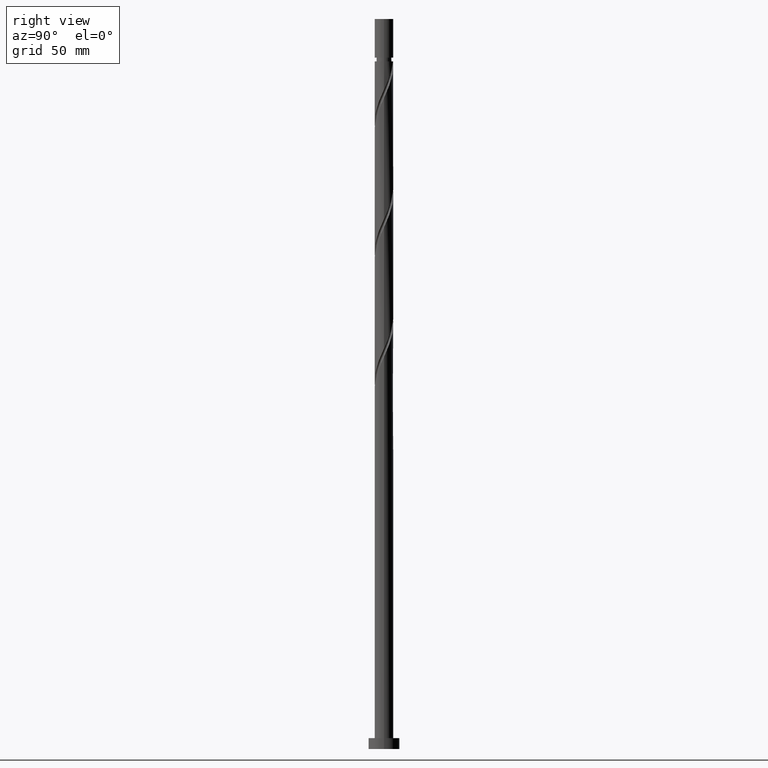
[diagram: clean part render]
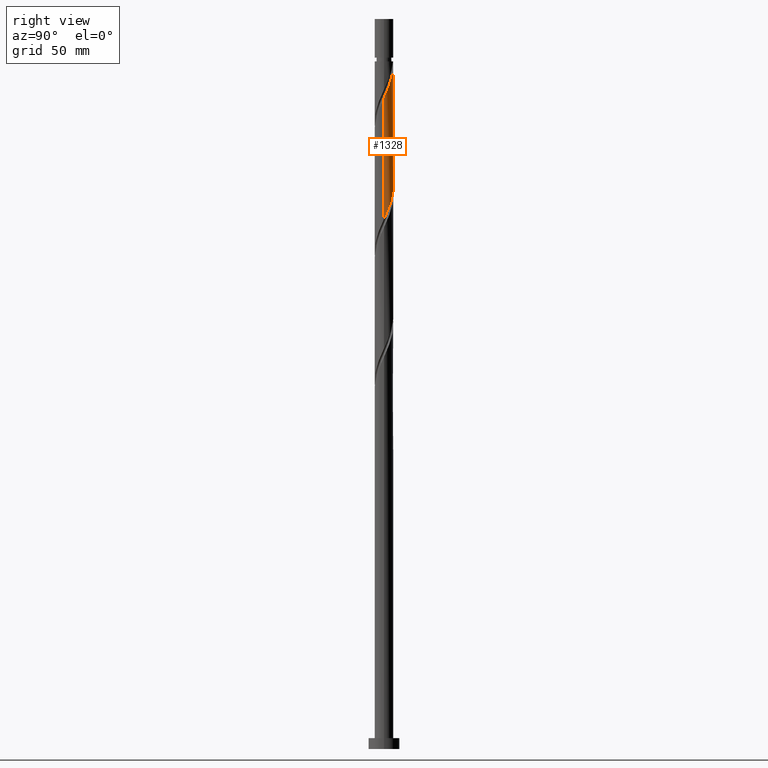
[diagram: same view with one face highlighted and labeled with its STEP entity id]
A machine part, right view. The second image highlights one B-rep face of the part: STEP entity #1328.
In plain terms, the highlighted cylindrical surface (edge-blend (fillet) strip) has radius 6 mm, axis along (-0, -0, -1).
Its self-contained STEP definition (entity closure, byte-faithful):
#67 = CARTESIAN_POINT ( 'NONE',  ( -5.999999999999999112, 0.01195592024556175158, 382.8431378041397579 ) ) ;
#91 = CARTESIAN_POINT ( 'NONE',  ( 1.193984924527949021, 5.880000000000000782, 359.3792943806600988 ) ) ;
#101 = DIRECTION ( 'NONE',  ( -1.000000000000000000, 0.000000000000000000, 0.000000000000000000 ) ) ;
#109 = ORIENTED_EDGE ( 'NONE', *, *, #492, .T. ) ;
#114 = CYLINDRICAL_SURFACE ( 'NONE', #171, 6.000000000000000888 ) ;
#135 = CARTESIAN_POINT ( 'NONE',  ( 5.002062710145120050, 3.313513036608679574, 348.9626277139934132 ) ) ;
#171 = AXIS2_PLACEMENT_3D ( 'NONE', #600, #261, #101 ) ;
#179 = CARTESIAN_POINT ( 'NONE',  ( 6.000000000000009770, -1.194714992939284028E-15, 419.2224307359965678 ) ) ;
#214 = CARTESIAN_POINT ( 'NONE',  ( 0.5670319816967465121, 6.002307453555062011, 438.8063777139935269 ) ) ;
#233 = CARTESIAN_POINT ( 'NONE',  ( -6.000000000000000888, -5.878519637645121599E-15, 382.8694913586569442 ) ) ;
#235 = EDGE_CURVE ( 'NONE', #435, #2083, #1494, .T. ) ;
#237 = CARTESIAN_POINT ( 'NONE',  ( 1.773114376268073222, 5.762402749195945972, 358.0772110473267844 ) ) ;
#261 = DIRECTION ( 'NONE',  ( -0.000000000000000000, -0.000000000000000000, -1.000000000000000000 ) ) ;
#284 = CARTESIAN_POINT ( 'NONE',  ( 3.353276816205135180, 4.975493402055835901, 354.1709610473267844 ) ) ;
#363 = CARTESIAN_POINT ( 'NONE',  ( 5.997597250804064473, 0.6148554727878225989, 420.5772110473267844 ) ) ;
#378 = DIRECTION ( 'NONE',  ( -0.000000000000000000, -0.000000000000000000, -1.000000000000000000 ) ) ;
#397 = CARTESIAN_POINT ( 'NONE',  ( -1.147080348408323625, 5.889329900276893959, 364.5876277139933563 ) ) ;
#413 = CARTESIAN_POINT ( 'NONE',  ( 6.000000000000009770, -1.194714992939284226E-15, 419.2224307359965678 ) ) ;
#435 = VERTEX_POINT ( 'NONE', #908 ) ;
#448 = VERTEX_POINT ( 'NONE', #1688 ) ;
#451 = CARTESIAN_POINT ( 'NONE',  ( 5.889329900276893071, 1.147080348408325179, 343.7542943806599851 ) ) ;
#477 = CARTESIAN_POINT ( 'NONE',  ( 2.863233488642341840, 5.305762341528926562, 355.4730443806600988 ) ) ;
#492 = EDGE_CURVE ( 'NONE', #435, #1160, #1362, .T. ) ;
#524 = ORIENTED_EDGE ( 'NONE', *, *, #1520, .F. ) ;
#531 = CARTESIAN_POINT ( 'NONE',  ( -0.02391174554553508053, 5.999952352179564130, 440.1084610473269549 ) ) ;
#550 = AXIS2_PLACEMENT_3D ( 'NONE', #623, #1761, #1908 ) ;
#555 = CARTESIAN_POINT ( 'NONE',  ( -5.880000000000000782, 1.193984924527948133, 380.2126277139934700 ) ) ;
#600 = CARTESIAN_POINT ( 'NONE',  ( 0.000000000000000000, 0.000000000000000000, 470.0000000000000568 ) ) ;
#621 = CARTESIAN_POINT ( 'NONE',  ( 5.776352346998733012, 1.727128715119902846, 345.0563777139934700 ) ) ;
#623 = CARTESIAN_POINT ( 'NONE',  ( 0.000000000000000000, 0.000000000000000000, 442.7126277139934700 ) ) ;
#653 = EDGE_LOOP ( 'NONE', ( #1304, #1099, #524, #1369, #109 ) ) ;
#661 = CARTESIAN_POINT ( 'NONE',  ( 4.645224462582758562, 3.843320143767927188, 428.3897110473266707 ) ) ;
#673 = CARTESIAN_POINT ( 'NONE',  ( -0.6148554727878222659, 5.997597250804064473, 441.4105443806601556 ) ) ;
#720 = CARTESIAN_POINT ( 'NONE',  ( -2.820852860605946866, 5.328415259162967210, 368.4938777139934700 ) ) ;
#743 = CARTESIAN_POINT ( 'NONE',  ( -0.5670319816967441806, 6.002307453555054906, 363.2855443806602125 ) ) ;
#762 = DIRECTION ( 'NONE',  ( -0.000000000000000000, -0.000000000000000000, -1.000000000000000000 ) ) ;
#763 = CARTESIAN_POINT ( 'NONE',  ( -5.999952352179554360, 0.02391174554553919182, 382.8167943806600988 ) ) ;
#855 = CARTESIAN_POINT ( 'NONE',  ( 4.225698837597090751, 4.259515152447600705, 429.6917943806602125 ) ) ;
#856 = VECTOR ( 'NONE', #762, 1000.000000000000000 ) ;
#882 = CARTESIAN_POINT ( 'NONE',  ( -4.645224462582750569, 3.843320143767924524, 373.7022110473268413 ) ) ;
#906 = CARTESIAN_POINT ( 'NONE',  ( -2.273990787862925522, 5.552383803080852331, 367.1917943806601556 ) ) ;
#908 = CARTESIAN_POINT ( 'NONE',  ( -5.999999999999960032, 0.000000000000000000, 442.7126277139934700 ) ) ;
#933 = EDGE_CURVE ( 'NONE', #2071, #448, #1718, .T. ) ;
#974 = CARTESIAN_POINT ( 'NONE',  ( 5.552383803080853220, 2.273990787862922414, 346.3584610473266707 ) ) ;
#1016 = CARTESIAN_POINT ( 'NONE',  ( 4.975493402055846559, 3.353276816205138289, 427.0876277139934700 ) ) ;
#1049 = CARTESIAN_POINT ( 'NONE',  ( 0.02391174554553877549, 5.999952352179554360, 361.9834610473267844 ) ) ;
#1057 = CARTESIAN_POINT ( 'NONE',  ( 6.000000000000000888, 7.347880794884120722E-16, 470.0000000000000568 ) ) ;
#1061 = CARTESIAN_POINT ( 'NONE',  ( -4.225698837597083646, 4.259515152447598041, 372.4001277139934700 ) ) ;
#1089 = CARTESIAN_POINT ( 'NONE',  ( -5.305762341528927450, 2.863233488642340951, 376.3063777139934700 ) ) ;
#1099 = ORIENTED_EDGE ( 'NONE', *, *, #933, .T. ) ;
#1121 = CARTESIAN_POINT ( 'NONE',  ( 3.843320143767924968, 4.645224462582749680, 352.8688777139934700 ) ) ;
#1156 =( BOUNDED_CURVE ( )  B_SPLINE_CURVE ( 2, ( #1565, #67, #763, #2054, #555, #1852, #1249, #1089, #1739, #882, #1061, #1216, #1522, #720, #906, #1545, #397, #743, #1049, #1696, #91, #237, #1535, #477, #284, #1121, #1583, #1284, #135, #1606, #974, #621, #451, #1614, #1295 ),
 .UNSPECIFIED., .F., .T. ) 
 B_SPLINE_CURVE_WITH_KNOTS ( ( 3, 2, 2, 2, 2, 2, 2, 2, 2, 2, 2, 2, 2, 2, 2, 2, 2, 3 ),
 ( 0.4295286902180871502, 0.4296875000000000000, 0.4375000000000000000, 0.4453125000000000000, 0.4531250000000000000, 0.4609375000000000000, 0.4687500000000000000, 0.4765625000000000000, 0.4843750000000000000, 0.4921875000000000000, 0.5000000000000000000, 0.5078125000000000000, 0.5156250000000000000, 0.5234375000000000000, 0.5312500000000000000, 0.5390625000000000000, 0.5468750000000000000, 0.5545286902180872612 ),
 .UNSPECIFIED. ) 
 CURVE ( )  GEOMETRIC_REPRESENTATION_ITEM ( )  RATIONAL_B_SPLINE_CURVE ( ( 0.9089165573359407890, 0.9090019243628455481, 0.9090909090909373713, 0.9047133878838434784, 0.9090909090909373713, 0.9047133878838434784, 0.9090909090909373713, 0.9047133878838434784, 0.9090909090909373713, 0.9047133878838434784, 0.9090909090909373713, 0.9047133878838434784, 0.9090909090909373713, 0.9047133878838434784, 0.9090909090909373713, 0.9047133878838434784, 0.9090909090909373713, 0.9047133878838434784, 0.9090909090909373713, 0.9047133878838434784, 0.9090909090909373713, 0.9047133878838434784, 0.9090909090909373713, 0.9047133878838434784, 0.9090909090909373713, 0.9047133878838434784, 0.9090909090909373713, 0.9047133878838434784, 0.9090909090909373713, 0.9047133878838434784, 0.9090909090909373713, 0.9047133878838434784, 0.9090909090909373713, 0.9048023726119351906, 0.9089165573359409001 ) ) 
 REPRESENTATION_ITEM ( '' )  );
#1160 = VERTEX_POINT ( 'NONE', #1928 ) ;
#1162 = CARTESIAN_POINT ( 'NONE',  ( 5.534082545362442929, 2.318173932455209751, 424.4834610473267844 ) ) ;
#1184 = CARTESIAN_POINT ( 'NONE',  ( 1.147080348408330286, 5.889329900276901064, 437.5042943806602125 ) ) ;
#1216 = CARTESIAN_POINT ( 'NONE',  ( -3.806173212611412282, 4.675710161127272002, 371.0980443806602125 ) ) ;
#1249 = CARTESIAN_POINT ( 'NONE',  ( -5.534082545362434047, 2.318173932455208419, 377.6084610473267844 ) ) ;
#1284 = CARTESIAN_POINT ( 'NONE',  ( 4.675710161127275555, 3.806173212611410506, 350.2647110473268981 ) ) ;
#1295 = CARTESIAN_POINT ( 'NONE',  ( 6.000000000000000888, 6.460034579606212606E-15, 341.2028246919902585 ) ) ;
#1304 = ORIENTED_EDGE ( 'NONE', *, *, #1681, .F. ) ;
#1307 = CARTESIAN_POINT ( 'NONE',  ( 1.727128715119907731, 5.776352346998739229, 436.2022110473267276 ) ) ;
#1328 = ADVANCED_FACE ( 'NONE', ( #2012 ), #114, .T. ) ;
#1340 = CARTESIAN_POINT ( 'NONE',  ( 2.273990787862929519, 5.552383803080859437, 434.9001277139935837 ) ) ;
#1353 = CARTESIAN_POINT ( 'NONE',  ( 5.999952352179564130, 0.02391174554553549686, 419.2751277139934132 ) ) ;
#1362 = CIRCLE ( 'NONE', #550, 5.999999999999960032 ) ;
#1369 = ORIENTED_EDGE ( 'NONE', *, *, #235, .F. ) ;
#1467 = CARTESIAN_POINT ( 'NONE',  ( 5.305762341528934556, 2.863233488642342284, 425.7855443806600988 ) ) ;
#1494 = LINE ( 'NONE', #1833, #2091 ) ;
#1499 = CARTESIAN_POINT ( 'NONE',  ( 5.762402749195953966, 1.773114376268072778, 423.1813777139933563 ) ) ;
#1520 = EDGE_CURVE ( 'NONE', #2083, #448, #1156, .T. ) ;
#1522 = CARTESIAN_POINT ( 'NONE',  ( -3.313513036608680018, 5.002062710145120050, 369.7959610473268413 ) ) ;
#1535 = CARTESIAN_POINT ( 'NONE',  ( 2.318173932455210196, 5.534082545362434047, 356.7751277139935269 ) ) ;
#1545 = CARTESIAN_POINT ( 'NONE',  ( -1.727128715119903291, 5.776352346998733012, 365.8897110473267844 ) ) ;
#1565 = CARTESIAN_POINT ( 'NONE',  ( -6.000000000000000888, -5.878519637645121599E-15, 382.8694913586569442 ) ) ;
#1583 = CARTESIAN_POINT ( 'NONE',  ( 4.259515152447598041, 4.225698837597083646, 351.5667943806601556 ) ) ;
#1588 =( BOUNDED_CURVE ( )  B_SPLINE_CURVE ( 2, ( #179, #1817, #1353, #363, #1997, #1499, #1162, #1467, #1016, #661, #855, #1662, #1987, #1790, #1340, #1307, #1184, #214, #531, #673, #1828 ),
 .UNSPECIFIED., .F., .T. ) 
 B_SPLINE_CURVE_WITH_KNOTS ( ( 3, 2, 2, 2, 2, 2, 2, 2, 2, 2, 3 ),
 ( 0.6795286902180875943, 0.6796875000000000000, 0.6875000000000000000, 0.6953125000000000000, 0.7031250000000000000, 0.7109375000000000000, 0.7187500000000000000, 0.7265625000000000000, 0.7343750000000000000, 0.7421875000000000000, 0.7500000000000000000 ),
 .UNSPECIFIED. ) 
 CURVE ( )  GEOMETRIC_REPRESENTATION_ITEM ( )  RATIONAL_B_SPLINE_CURVE ( ( 0.9089165573359462291, 0.9090019243628508772, 0.9090909090909424783, 0.9047133878838486964, 0.9090909090909424783, 0.9047133878838486964, 0.9090909090909424783, 0.9047133878838486964, 0.9090909090909424783, 0.9047133878838486964, 0.9090909090909424783, 0.9047133878838486964, 0.9090909090909424783, 0.9047133878838486964, 0.9090909090909424783, 0.9047133878838486964, 0.9090909090909424783, 0.9047133878838486964, 0.9090909090909424783, 0.9047133878838486964, 0.9090909090909424783 ) ) 
 REPRESENTATION_ITEM ( '' )  );
#1606 = CARTESIAN_POINT ( 'NONE',  ( 5.328415259162967210, 2.820852860605948198, 347.6605443806600988 ) ) ;
#1614 = CARTESIAN_POINT ( 'NONE',  ( 6.000000000000003553, 0.5788788895738834483, 342.4788047974062692 ) ) ;
#1662 = CARTESIAN_POINT ( 'NONE',  ( 3.806173212611417611, 4.675710161127278219, 430.9938777139934132 ) ) ;
#1681 = EDGE_CURVE ( 'NONE', #2071, #1160, #1588, .T. ) ;
#1688 = CARTESIAN_POINT ( 'NONE',  ( 6.000000000000000888, 6.460034579606212606E-15, 341.2028246919902585 ) ) ;
#1696 = CARTESIAN_POINT ( 'NONE',  ( 0.6148554727878217108, 5.997597250804057367, 360.6813777139934700 ) ) ;
#1718 = LINE ( 'NONE', #1057, #856 ) ;
#1739 = CARTESIAN_POINT ( 'NONE',  ( -4.975493402055838565, 3.353276816205132072, 375.0042943806601556 ) ) ;
#1761 = DIRECTION ( 'NONE',  ( -0.000000000000000000, -0.000000000000000000, -1.000000000000000000 ) ) ;
#1790 = CARTESIAN_POINT ( 'NONE',  ( 2.820852860605953083, 5.328415259162971651, 433.5980443806599851 ) ) ;
#1817 = CARTESIAN_POINT ( 'NONE',  ( 6.000000000000010658, 0.01195592024559150382, 419.2487842905138677 ) ) ;
#1828 = CARTESIAN_POINT ( 'NONE',  ( -1.193984924527904834, 5.880000000000008775, 442.7126277139933563 ) ) ;
#1833 = CARTESIAN_POINT ( 'NONE',  ( -6.000000000000000888, 0.000000000000000000, 470.0000000000000568 ) ) ;
#1852 = CARTESIAN_POINT ( 'NONE',  ( -5.762402749195945972, 1.773114376268074333, 378.9105443806601556 ) ) ;
#1908 = DIRECTION ( 'NONE',  ( -1.000000000000000000, 0.000000000000000000, 0.000000000000000000 ) ) ;
#1928 = CARTESIAN_POINT ( 'NONE',  ( -1.193984924527904834, 5.880000000000008775, 442.7126277139933563 ) ) ;
#1987 = CARTESIAN_POINT ( 'NONE',  ( 3.313513036608687123, 5.002062710145125379, 432.2959610473268981 ) ) ;
#1997 = CARTESIAN_POINT ( 'NONE',  ( 5.880000000000009663, 1.193984924527947467, 421.8792943806601556 ) ) ;
#2012 = FACE_OUTER_BOUND ( 'NONE', #653, .T. ) ;
#2054 = CARTESIAN_POINT ( 'NONE',  ( -5.997597250804057367, 0.6148554727878215997, 381.5147110473267844 ) ) ;
#2071 = VERTEX_POINT ( 'NONE', #413 ) ;
#2083 = VERTEX_POINT ( 'NONE', #233 ) ;
#2091 = VECTOR ( 'NONE', #378, 1000.000000000000000 ) ;